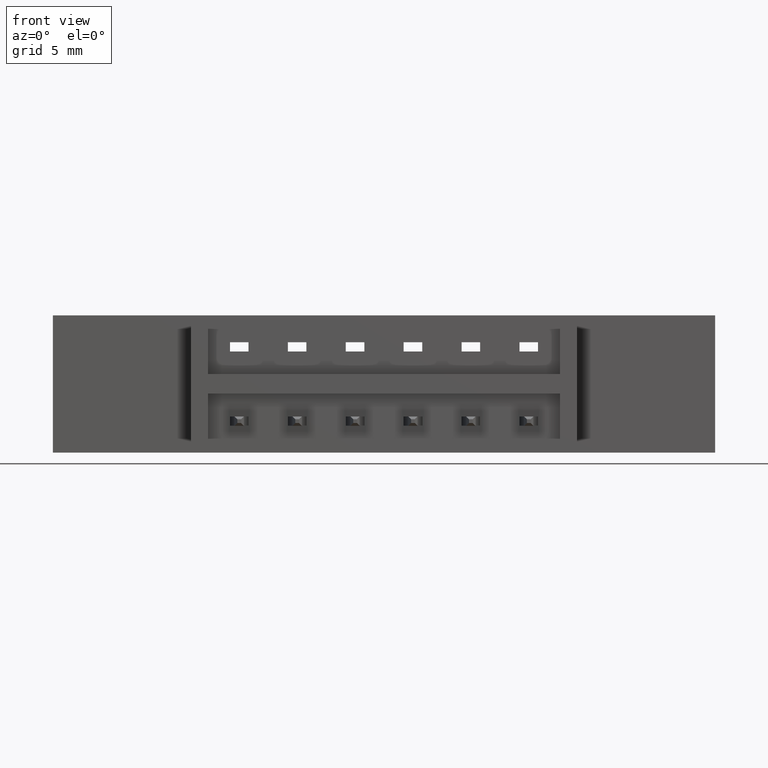
[diagram: clean part render]
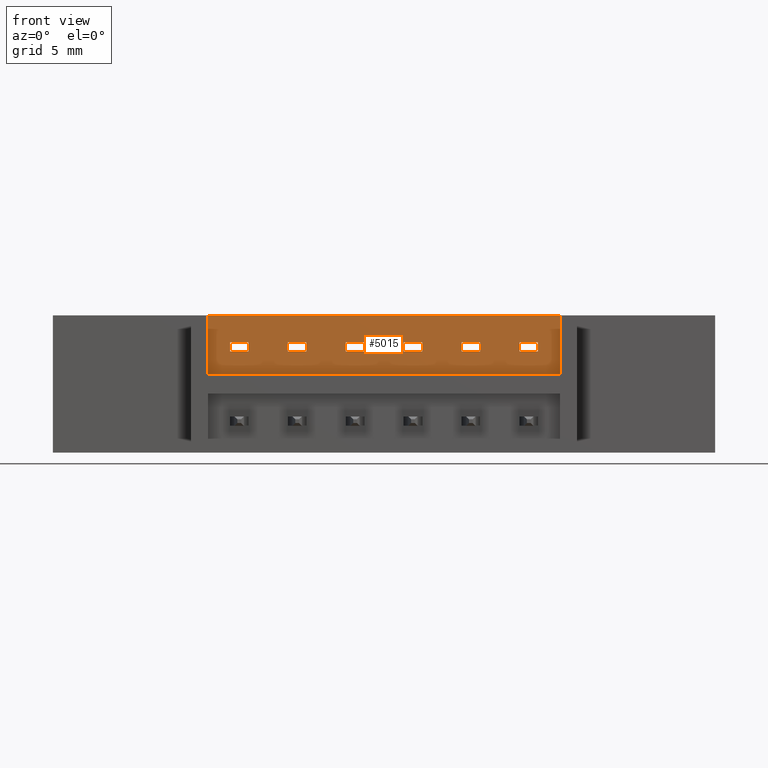
[diagram: same view with one face highlighted and labeled with its STEP entity id]
A machine part, front view. The second image highlights one B-rep face of the part: STEP entity #5015.
In plain terms, the highlighted planar face has unit normal (0, 1, 0).
Its self-contained STEP definition (entity closure, byte-faithful):
#56 = CARTESIAN_POINT ( 'NONE',  ( 1.151000000000000000, 0.05000000000000000300, -0.09750000000000011400 ) ) ;
#98 = CARTESIAN_POINT ( 'NONE',  ( 0.9449999999999998400, 0.05000000000000000300, 0.0000000000000000000 ) ) ;
#128 = VERTEX_POINT ( 'NONE', #328 ) ;
#132 = ORIENTED_EDGE ( 'NONE', *, *, #3552, .F. ) ;
#158 = CARTESIAN_POINT ( 'NONE',  ( 1.366499999999999800, 0.05000000000000000300, 0.0000000000000000000 ) ) ;
#178 = CARTESIAN_POINT ( 'NONE',  ( 1.366499999999999800, 0.05000000000000000300, -0.09750000000000005900 ) ) ;
#218 = EDGE_CURVE ( 'NONE', #857, #3920, #7804, .T. ) ;
#254 = CARTESIAN_POINT ( 'NONE',  ( 1.101000000000000000, 0.04999999999999998900, -0.07250000000000002300 ) ) ;
#264 = CARTESIAN_POINT ( 'NONE',  ( 0.8389999999999998600, 0.05000000000000000300, 0.0000000000000000000 ) ) ;
#268 = LINE ( 'NONE', #178, #5454 ) ;
#317 = CARTESIAN_POINT ( 'NONE',  ( 1.256999999999999700, 0.05000000000000000300, 0.0000000000000000000 ) ) ;
#322 = CARTESIAN_POINT ( 'NONE',  ( 0.9949999999999998800, 0.04999999999999998900, -0.07250000000000002300 ) ) ;
#328 = CARTESIAN_POINT ( 'NONE',  ( 0.4174999999999999800, 0.05000000000000000300, -0.1585000000000000300 ) ) ;
#379 = VECTOR ( 'NONE', #7071, 39.37007874015748100 ) ;
#384 = EDGE_LOOP ( 'NONE', ( #4694, #3473, #2831, #3549 ) ) ;
#402 = VERTEX_POINT ( 'NONE', #2290 ) ;
#403 = LINE ( 'NONE', #317, #7194 ) ;
#404 = CARTESIAN_POINT ( 'NONE',  ( 0.4174999999999999800, 0.05000000000000000300, -0.1585000000000000300 ) ) ;
#538 = ORIENTED_EDGE ( 'NONE', *, *, #1849, .F. ) ;
#551 = LINE ( 'NONE', #264, #5882 ) ;
#557 = EDGE_CURVE ( 'NONE', #7704, #402, #4111, .T. ) ;
#600 = FACE_BOUND ( 'NONE', #6922, .T. ) ;
#623 = ORIENTED_EDGE ( 'NONE', *, *, #7579, .T. ) ;
#649 = CARTESIAN_POINT ( 'NONE',  ( 0.4174999999999999800, 0.05000000000000000300, 0.0000000000000000000 ) ) ;
#665 = DIRECTION ( 'NONE',  ( -1.000000000000000000, 0.0000000000000000000, 0.0000000000000000000 ) ) ;
#697 = VERTEX_POINT ( 'NONE', #3273 ) ;
#709 = DIRECTION ( 'NONE',  ( 0.0000000000000000000, 0.0000000000000000000, 1.000000000000000000 ) ) ;
#729 = ORIENTED_EDGE ( 'NONE', *, *, #5174, .T. ) ;
#804 = ORIENTED_EDGE ( 'NONE', *, *, #5621, .F. ) ;
#811 = ORIENTED_EDGE ( 'NONE', *, *, #557, .T. ) ;
#857 = VERTEX_POINT ( 'NONE', #8296 ) ;
#951 = EDGE_CURVE ( 'NONE', #1579, #697, #4323, .T. ) ;
#1036 = ORIENTED_EDGE ( 'NONE', *, *, #2032, .T. ) ;
#1041 = LINE ( 'NONE', #6068, #6116 ) ;
#1081 = VECTOR ( 'NONE', #5727, 39.37007874015748100 ) ;
#1171 = VECTOR ( 'NONE', #2727, 39.37007874015748100 ) ;
#1268 = VECTOR ( 'NONE', #7573, 39.37007874015748100 ) ;
#1301 = CARTESIAN_POINT ( 'NONE',  ( 1.366499999999999800, 0.05000000000000000300, -0.09750000000000005900 ) ) ;
#1388 = CARTESIAN_POINT ( 'NONE',  ( 0.9449999999999998400, 0.04999999999999998900, -0.07250000000000002300 ) ) ;
#1548 = FACE_BOUND ( 'NONE', #3760, .T. ) ;
#1573 = ORIENTED_EDGE ( 'NONE', *, *, #6210, .T. ) ;
#1579 = VERTEX_POINT ( 'NONE', #2963 ) ;
#1645 = EDGE_CURVE ( 'NONE', #5469, #5957, #3396, .T. ) ;
#1697 = LINE ( 'NONE', #6148, #5462 ) ;
#1698 = EDGE_CURVE ( 'NONE', #128, #5182, #3194, .T. ) ;
#1705 = LINE ( 'NONE', #4410, #1918 ) ;
#1725 = CARTESIAN_POINT ( 'NONE',  ( 0.9949999999999998800, 0.05000000000000000300, 0.0000000000000000000 ) ) ;
#1756 = ORIENTED_EDGE ( 'NONE', *, *, #1799, .T. ) ;
#1757 = FACE_BOUND ( 'NONE', #2168, .T. ) ;
#1799 = EDGE_CURVE ( 'NONE', #402, #3616, #2127, .T. ) ;
#1816 = VERTEX_POINT ( 'NONE', #322 ) ;
#1821 = ORIENTED_EDGE ( 'NONE', *, *, #2268, .T. ) ;
#1849 = EDGE_CURVE ( 'NONE', #6315, #3616, #1697, .T. ) ;
#1918 = VECTOR ( 'NONE', #665, 39.37007874015748100 ) ;
#1955 = CARTESIAN_POINT ( 'NONE',  ( 1.366499999999999800, 0.05000000000000000300, -0.09750000000000005900 ) ) ;
#2032 = EDGE_CURVE ( 'NONE', #7955, #4795, #403, .T. ) ;
#2085 = EDGE_CURVE ( 'NONE', #6268, #857, #7000, .T. ) ;
#2111 = DIRECTION ( 'NONE',  ( -1.000000000000000000, 0.0000000000000000000, 0.0000000000000000000 ) ) ;
#2127 = LINE ( 'NONE', #5757, #7289 ) ;
#2168 = EDGE_LOOP ( 'NONE', ( #729, #1036, #7946, #132 ) ) ;
#2184 = DIRECTION ( 'NONE',  ( -1.000000000000000000, -0.0000000000000000000, -0.0000000000000000000 ) ) ;
#2192 = VECTOR ( 'NONE', #3547, 39.37007874015748100 ) ;
#2194 = VERTEX_POINT ( 'NONE', #4878 ) ;
#2197 = CARTESIAN_POINT ( 'NONE',  ( 0.7889999999999998100, 0.05000000000000000300, 0.0000000000000000000 ) ) ;
#2268 = EDGE_CURVE ( 'NONE', #2194, #5469, #268, .T. ) ;
#2273 = DIRECTION ( 'NONE',  ( 0.0000000000000000000, 0.0000000000000000000, 1.000000000000000000 ) ) ;
#2290 = CARTESIAN_POINT ( 'NONE',  ( 0.4769999999999999200, 0.04999999999999998900, -0.07250000000000002300 ) ) ;
#2311 = CARTESIAN_POINT ( 'NONE',  ( 1.366499999999999800, 0.05000000000000000300, -0.07250000000000002300 ) ) ;
#2342 = ORIENTED_EDGE ( 'NONE', *, *, #2368, .T. ) ;
#2368 = EDGE_CURVE ( 'NONE', #8093, #4675, #6514, .T. ) ;
#2410 = CARTESIAN_POINT ( 'NONE',  ( 0.9949999999999998800, 0.05000000000000000300, -0.09750000000000011400 ) ) ;
#2426 = LINE ( 'NONE', #649, #5764 ) ;
#2462 = EDGE_CURVE ( 'NONE', #6501, #3637, #2426, .T. ) ;
#2583 = CARTESIAN_POINT ( 'NONE',  ( 1.306999999999999700, 0.04999999999999998900, -0.07250000000000002300 ) ) ;
#2673 = VECTOR ( 'NONE', #2729, 39.37007874015748100 ) ;
#2709 = LINE ( 'NONE', #6468, #6003 ) ;
#2727 = DIRECTION ( 'NONE',  ( 1.000000000000000000, 0.0000000000000000000, 0.0000000000000000000 ) ) ;
#2729 = DIRECTION ( 'NONE',  ( 0.0000000000000000000, 0.0000000000000000000, 1.000000000000000000 ) ) ;
#2769 = VECTOR ( 'NONE', #3606, 39.37007874015748100 ) ;
#2777 = CARTESIAN_POINT ( 'NONE',  ( 1.256999999999999700, 0.04999999999999998900, -0.07250000000000002300 ) ) ;
#2817 = DIRECTION ( 'NONE',  ( 0.0000000000000000000, 0.0000000000000000000, 1.000000000000000000 ) ) ;
#2831 = ORIENTED_EDGE ( 'NONE', *, *, #6846, .T. ) ;
#2963 = CARTESIAN_POINT ( 'NONE',  ( 0.7889999999999998100, 0.04999999999999998900, -0.07250000000000002300 ) ) ;
#2974 = LINE ( 'NONE', #5834, #2769 ) ;
#2982 = CARTESIAN_POINT ( 'NONE',  ( 0.4174999999999999800, 0.05000000000000000300, -0.1585000000000000300 ) ) ;
#2988 = ORIENTED_EDGE ( 'NONE', *, *, #5056, .T. ) ;
#3194 = LINE ( 'NONE', #2982, #4951 ) ;
#3246 = EDGE_CURVE ( 'NONE', #5957, #8369, #6797, .T. ) ;
#3270 = ORIENTED_EDGE ( 'NONE', *, *, #7837, .T. ) ;
#3273 = CARTESIAN_POINT ( 'NONE',  ( 0.8389999999999998600, 0.04999999999999998900, -0.07250000000000002300 ) ) ;
#3339 = CARTESIAN_POINT ( 'NONE',  ( 0.7889999999999998100, 0.05000000000000001000, -0.09750000000000005900 ) ) ;
#3352 = FACE_BOUND ( 'NONE', #7303, .T. ) ;
#3384 = VECTOR ( 'NONE', #6100, 39.37007874015748100 ) ;
#3396 = LINE ( 'NONE', #6622, #5158 ) ;
#3473 = ORIENTED_EDGE ( 'NONE', *, *, #2462, .T. ) ;
#3511 = CARTESIAN_POINT ( 'NONE',  ( 1.101000000000000000, 0.05000000000000000300, 0.0000000000000000000 ) ) ;
#3547 = DIRECTION ( 'NONE',  ( 0.0000000000000000000, 0.0000000000000000000, 1.000000000000000000 ) ) ;
#3549 = ORIENTED_EDGE ( 'NONE', *, *, #1698, .T. ) ;
#3552 = EDGE_CURVE ( 'NONE', #6740, #7096, #1041, .T. ) ;
#3598 = DIRECTION ( 'NONE',  ( 0.0000000000000000000, 0.0000000000000000000, 1.000000000000000000 ) ) ;
#3602 = EDGE_CURVE ( 'NONE', #6268, #1816, #3996, .T. ) ;
#3606 = DIRECTION ( 'NONE',  ( -1.000000000000000000, 0.0000000000000000000, 0.0000000000000000000 ) ) ;
#3616 = VERTEX_POINT ( 'NONE', #7764 ) ;
#3637 = VERTEX_POINT ( 'NONE', #7553 ) ;
#3654 = VERTEX_POINT ( 'NONE', #56 ) ;
#3669 = DIRECTION ( 'NONE',  ( 1.000000000000000000, 0.0000000000000000000, 0.0000000000000000000 ) ) ;
#3727 = EDGE_LOOP ( 'NONE', ( #8268, #6241, #3983, #6929 ) ) ;
#3754 = FACE_BOUND ( 'NONE', #3727, .T. ) ;
#3760 = EDGE_LOOP ( 'NONE', ( #3270, #811, #1756, #538 ) ) ;
#3863 = CARTESIAN_POINT ( 'NONE',  ( 0.4769999999999999200, 0.05000000000000001000, -0.09750000000000005900 ) ) ;
#3920 = VERTEX_POINT ( 'NONE', #1388 ) ;
#3977 = CARTESIAN_POINT ( 'NONE',  ( 0.5269999999999999100, 0.05000000000000000300, -0.09750000000000011400 ) ) ;
#3983 = ORIENTED_EDGE ( 'NONE', *, *, #951, .T. ) ;
#3996 = LINE ( 'NONE', #1725, #379 ) ;
#4065 = EDGE_CURVE ( 'NONE', #5182, #6501, #7173, .T. ) ;
#4082 = CARTESIAN_POINT ( 'NONE',  ( 0.8389999999999998600, 0.05000000000000000300, -0.09750000000000011400 ) ) ;
#4111 = LINE ( 'NONE', #8048, #7291 ) ;
#4145 = VECTOR ( 'NONE', #5234, 39.37007874015748100 ) ;
#4148 = VERTEX_POINT ( 'NONE', #6101 ) ;
#4171 = DIRECTION ( 'NONE',  ( 0.0000000000000000000, 0.0000000000000000000, 1.000000000000000000 ) ) ;
#4180 = LINE ( 'NONE', #2197, #2192 ) ;
#4185 = CARTESIAN_POINT ( 'NONE',  ( 1.366499999999999800, 0.05000000000000000300, 0.0000000000000000000 ) ) ;
#4196 = ORIENTED_EDGE ( 'NONE', *, *, #218, .T. ) ;
#4283 = LINE ( 'NONE', #1955, #5420 ) ;
#4323 = LINE ( 'NONE', #7645, #6048 ) ;
#4410 = CARTESIAN_POINT ( 'NONE',  ( 1.366499999999999800, 0.05000000000000000300, -0.09750000000000005900 ) ) ;
#4517 = EDGE_CURVE ( 'NONE', #8188, #1579, #4180, .T. ) ;
#4539 = CARTESIAN_POINT ( 'NONE',  ( 0.6829999999999999400, 0.04999999999999998900, -0.07250000000000002300 ) ) ;
#4624 = ORIENTED_EDGE ( 'NONE', *, *, #3246, .T. ) ;
#4675 = VERTEX_POINT ( 'NONE', #4750 ) ;
#4694 = ORIENTED_EDGE ( 'NONE', *, *, #4065, .T. ) ;
#4731 = ORIENTED_EDGE ( 'NONE', *, *, #2085, .T. ) ;
#4750 = CARTESIAN_POINT ( 'NONE',  ( 1.151000000000000000, 0.04999999999999998900, -0.07250000000000002300 ) ) ;
#4795 = VERTEX_POINT ( 'NONE', #2777 ) ;
#4861 = CARTESIAN_POINT ( 'NONE',  ( 1.306999999999999700, 0.05000000000000000300, -0.09750000000000011400 ) ) ;
#4878 = CARTESIAN_POINT ( 'NONE',  ( 0.6829999999999999400, 0.05000000000000000300, -0.09750000000000011400 ) ) ;
#4919 = ORIENTED_EDGE ( 'NONE', *, *, #3602, .F. ) ;
#4951 = VECTOR ( 'NONE', #6970, 39.37007874015748100 ) ;
#4963 = CARTESIAN_POINT ( 'NONE',  ( 1.366499999999999800, 0.05000000000000000300, -0.07250000000000002300 ) ) ;
#5015 = ADVANCED_FACE ( 'NONE', ( #1757, #600, #5103, #3754, #3352, #1548, #8217 ), #6198, .F. ) ;
#5056 = EDGE_CURVE ( 'NONE', #4148, #8093, #8014, .T. ) ;
#5103 = FACE_BOUND ( 'NONE', #6728, .T. ) ;
#5158 = VECTOR ( 'NONE', #709, 39.37007874015748100 ) ;
#5174 = EDGE_CURVE ( 'NONE', #6740, #7955, #4283, .T. ) ;
#5182 = VERTEX_POINT ( 'NONE', #7823 ) ;
#5216 = CARTESIAN_POINT ( 'NONE',  ( 0.6329999999999999000, 0.05000000000000001000, -0.09750000000000005900 ) ) ;
#5234 = DIRECTION ( 'NONE',  ( 1.000000000000000000, 0.0000000000000000000, 0.0000000000000000000 ) ) ;
#5282 = VERTEX_POINT ( 'NONE', #4082 ) ;
#5293 = CARTESIAN_POINT ( 'NONE',  ( 0.6329999999999999000, 0.04999999999999998900, -0.07250000000000002300 ) ) ;
#5408 = DIRECTION ( 'NONE',  ( 0.0000000000000000000, 0.0000000000000000000, 1.000000000000000000 ) ) ;
#5420 = VECTOR ( 'NONE', #2111, 39.37007874015748100 ) ;
#5454 = VECTOR ( 'NONE', #8494, 39.37007874015748100 ) ;
#5462 = VECTOR ( 'NONE', #5408, 39.37007874015748100 ) ;
#5469 = VERTEX_POINT ( 'NONE', #5216 ) ;
#5537 = VECTOR ( 'NONE', #2273, 39.37007874015748100 ) ;
#5541 = DIRECTION ( 'NONE',  ( -1.000000000000000000, 0.0000000000000000000, 0.0000000000000000000 ) ) ;
#5606 = DIRECTION ( 'NONE',  ( 0.0000000000000000000, 0.0000000000000000000, 1.000000000000000000 ) ) ;
#5621 = EDGE_CURVE ( 'NONE', #2194, #8369, #2709, .T. ) ;
#5727 = DIRECTION ( 'NONE',  ( -0.0000000000000000000, -0.0000000000000000000, -1.000000000000000000 ) ) ;
#5757 = CARTESIAN_POINT ( 'NONE',  ( 1.366499999999999800, 0.05000000000000000300, -0.07250000000000002300 ) ) ;
#5764 = VECTOR ( 'NONE', #2184, 39.37007874015748100 ) ;
#5834 = CARTESIAN_POINT ( 'NONE',  ( 1.366499999999999800, 0.05000000000000000300, -0.09750000000000005900 ) ) ;
#5882 = VECTOR ( 'NONE', #2817, 39.37007874015748100 ) ;
#5957 = VERTEX_POINT ( 'NONE', #5293 ) ;
#6003 = VECTOR ( 'NONE', #6773, 39.37007874015748100 ) ;
#6017 = DIRECTION ( 'NONE',  ( 0.0000000000000000000, -0.0000000000000000000, 1.000000000000000000 ) ) ;
#6048 = VECTOR ( 'NONE', #6820, 39.37007874015748100 ) ;
#6068 = CARTESIAN_POINT ( 'NONE',  ( 1.306999999999999700, 0.05000000000000000300, 0.0000000000000000000 ) ) ;
#6075 = EDGE_CURVE ( 'NONE', #3654, #4675, #7229, .T. ) ;
#6100 = DIRECTION ( 'NONE',  ( 1.000000000000000000, 0.0000000000000000000, 0.0000000000000000000 ) ) ;
#6101 = CARTESIAN_POINT ( 'NONE',  ( 1.101000000000000000, 0.05000000000000001000, -0.09750000000000005900 ) ) ;
#6116 = VECTOR ( 'NONE', #7047, 39.37007874015748100 ) ;
#6121 = DIRECTION ( 'NONE',  ( 0.0000000000000000000, 1.000000000000000000, 0.0000000000000000000 ) ) ;
#6148 = CARTESIAN_POINT ( 'NONE',  ( 0.5269999999999999100, 0.05000000000000000300, 0.0000000000000000000 ) ) ;
#6156 = LINE ( 'NONE', #404, #1081 ) ;
#6198 = PLANE ( 'NONE',  #7070 ) ;
#6210 = EDGE_CURVE ( 'NONE', #3920, #1816, #7736, .T. ) ;
#6211 = ORIENTED_EDGE ( 'NONE', *, *, #1645, .T. ) ;
#6241 = ORIENTED_EDGE ( 'NONE', *, *, #4517, .T. ) ;
#6268 = VERTEX_POINT ( 'NONE', #2410 ) ;
#6315 = VERTEX_POINT ( 'NONE', #3977 ) ;
#6372 = DIRECTION ( 'NONE',  ( 0.0000000000000000000, 0.0000000000000000000, 1.000000000000000000 ) ) ;
#6413 = CARTESIAN_POINT ( 'NONE',  ( 1.366499999999999800, 0.05000000000000000300, -0.1585000000000000300 ) ) ;
#6468 = CARTESIAN_POINT ( 'NONE',  ( 0.6829999999999999400, 0.05000000000000000300, 0.0000000000000000000 ) ) ;
#6501 = VERTEX_POINT ( 'NONE', #158 ) ;
#6508 = EDGE_CURVE ( 'NONE', #5282, #8188, #7030, .T. ) ;
#6514 = LINE ( 'NONE', #7152, #1268 ) ;
#6622 = CARTESIAN_POINT ( 'NONE',  ( 0.6329999999999999000, 0.05000000000000000300, 0.0000000000000000000 ) ) ;
#6635 = LINE ( 'NONE', #8131, #1171 ) ;
#6728 = EDGE_LOOP ( 'NONE', ( #4731, #4196, #1573, #4919 ) ) ;
#6740 = VERTEX_POINT ( 'NONE', #4861 ) ;
#6773 = DIRECTION ( 'NONE',  ( 0.0000000000000000000, 0.0000000000000000000, 1.000000000000000000 ) ) ;
#6797 = LINE ( 'NONE', #4963, #3384 ) ;
#6807 = VECTOR ( 'NONE', #5541, 39.37007874015748100 ) ;
#6820 = DIRECTION ( 'NONE',  ( 1.000000000000000000, 0.0000000000000000000, 0.0000000000000000000 ) ) ;
#6823 = CARTESIAN_POINT ( 'NONE',  ( 1.366499999999999800, 0.05000000000000000300, -0.09750000000000005900 ) ) ;
#6846 = EDGE_CURVE ( 'NONE', #3637, #128, #6156, .T. ) ;
#6922 = EDGE_LOOP ( 'NONE', ( #623, #2988, #2342, #8095 ) ) ;
#6929 = ORIENTED_EDGE ( 'NONE', *, *, #7051, .F. ) ;
#6931 = CARTESIAN_POINT ( 'NONE',  ( 1.256999999999999700, 0.05000000000000001000, -0.09750000000000005900 ) ) ;
#6970 = DIRECTION ( 'NONE',  ( 1.000000000000000000, 0.0000000000000000000, 0.0000000000000000000 ) ) ;
#7000 = LINE ( 'NONE', #6823, #6807 ) ;
#7030 = LINE ( 'NONE', #1301, #8472 ) ;
#7036 = VECTOR ( 'NONE', #4171, 39.37007874015748100 ) ;
#7047 = DIRECTION ( 'NONE',  ( 0.0000000000000000000, 0.0000000000000000000, 1.000000000000000000 ) ) ;
#7051 = EDGE_CURVE ( 'NONE', #5282, #697, #551, .T. ) ;
#7070 = AXIS2_PLACEMENT_3D ( 'NONE', #4185, #6121, #6017 ) ;
#7071 = DIRECTION ( 'NONE',  ( 0.0000000000000000000, 0.0000000000000000000, 1.000000000000000000 ) ) ;
#7096 = VERTEX_POINT ( 'NONE', #2583 ) ;
#7152 = CARTESIAN_POINT ( 'NONE',  ( 1.366499999999999800, 0.05000000000000000300, -0.07250000000000002300 ) ) ;
#7173 = LINE ( 'NONE', #6413, #5537 ) ;
#7194 = VECTOR ( 'NONE', #5606, 39.37007874015748100 ) ;
#7229 = LINE ( 'NONE', #8028, #7036 ) ;
#7289 = VECTOR ( 'NONE', #3669, 39.37007874015748100 ) ;
#7291 = VECTOR ( 'NONE', #3598, 39.37007874015748100 ) ;
#7303 = EDGE_LOOP ( 'NONE', ( #1821, #6211, #4624, #804 ) ) ;
#7421 = EDGE_CURVE ( 'NONE', #4795, #7096, #6635, .T. ) ;
#7553 = CARTESIAN_POINT ( 'NONE',  ( 0.4174999999999999800, 0.05000000000000000300, 0.0000000000000000000 ) ) ;
#7573 = DIRECTION ( 'NONE',  ( 1.000000000000000000, 0.0000000000000000000, 0.0000000000000000000 ) ) ;
#7579 = EDGE_CURVE ( 'NONE', #3654, #4148, #1705, .T. ) ;
#7645 = CARTESIAN_POINT ( 'NONE',  ( 1.366499999999999800, 0.05000000000000000300, -0.07250000000000002300 ) ) ;
#7704 = VERTEX_POINT ( 'NONE', #3863 ) ;
#7732 = DIRECTION ( 'NONE',  ( -1.000000000000000000, 0.0000000000000000000, 0.0000000000000000000 ) ) ;
#7736 = LINE ( 'NONE', #2311, #4145 ) ;
#7764 = CARTESIAN_POINT ( 'NONE',  ( 0.5269999999999999100, 0.04999999999999998900, -0.07250000000000002300 ) ) ;
#7804 = LINE ( 'NONE', #98, #2673 ) ;
#7823 = CARTESIAN_POINT ( 'NONE',  ( 1.366499999999999800, 0.05000000000000000300, -0.1585000000000000300 ) ) ;
#7837 = EDGE_CURVE ( 'NONE', #6315, #7704, #2974, .T. ) ;
#7842 = VECTOR ( 'NONE', #6372, 39.37007874015748100 ) ;
#7946 = ORIENTED_EDGE ( 'NONE', *, *, #7421, .T. ) ;
#7955 = VERTEX_POINT ( 'NONE', #6931 ) ;
#8014 = LINE ( 'NONE', #3511, #7842 ) ;
#8028 = CARTESIAN_POINT ( 'NONE',  ( 1.151000000000000000, 0.05000000000000000300, 0.0000000000000000000 ) ) ;
#8048 = CARTESIAN_POINT ( 'NONE',  ( 0.4769999999999998700, 0.05000000000000000300, 0.0000000000000000000 ) ) ;
#8093 = VERTEX_POINT ( 'NONE', #254 ) ;
#8095 = ORIENTED_EDGE ( 'NONE', *, *, #6075, .F. ) ;
#8131 = CARTESIAN_POINT ( 'NONE',  ( 1.366499999999999800, 0.05000000000000000300, -0.07250000000000002300 ) ) ;
#8188 = VERTEX_POINT ( 'NONE', #3339 ) ;
#8217 = FACE_OUTER_BOUND ( 'NONE', #384, .T. ) ;
#8268 = ORIENTED_EDGE ( 'NONE', *, *, #6508, .T. ) ;
#8296 = CARTESIAN_POINT ( 'NONE',  ( 0.9449999999999998400, 0.05000000000000001000, -0.09750000000000005900 ) ) ;
#8369 = VERTEX_POINT ( 'NONE', #4539 ) ;
#8472 = VECTOR ( 'NONE', #7732, 39.37007874015748100 ) ;
#8494 = DIRECTION ( 'NONE',  ( -1.000000000000000000, 0.0000000000000000000, 0.0000000000000000000 ) ) ;